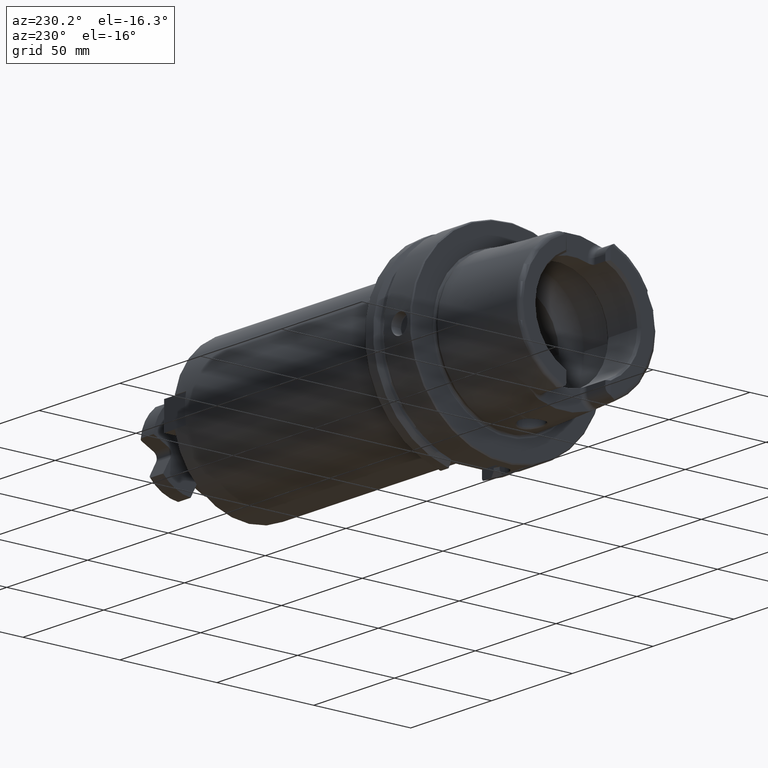
[diagram: clean part render]
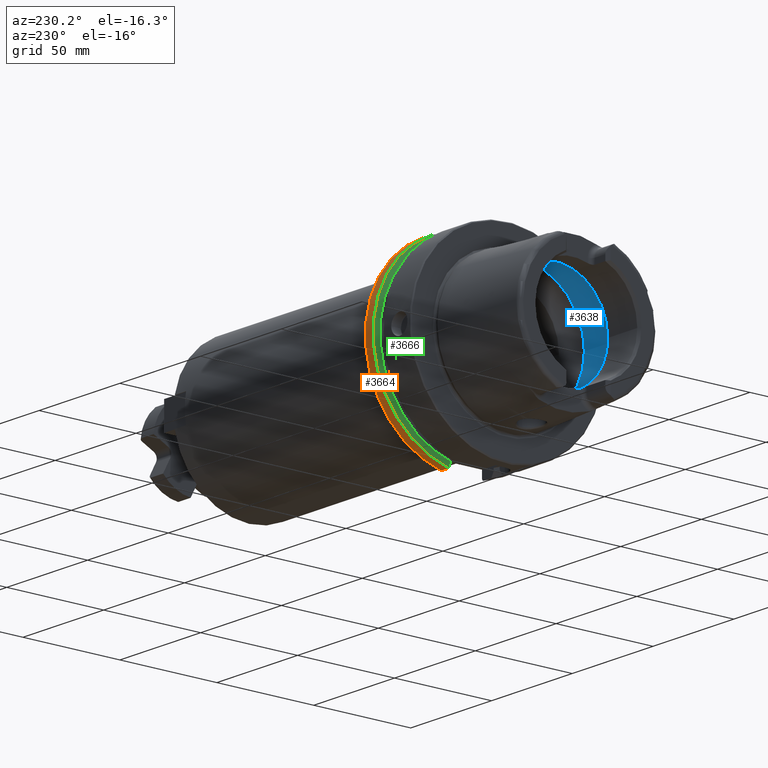
[diagram: same view with three faces highlighted in distinct colors, each labeled with its STEP entity id]
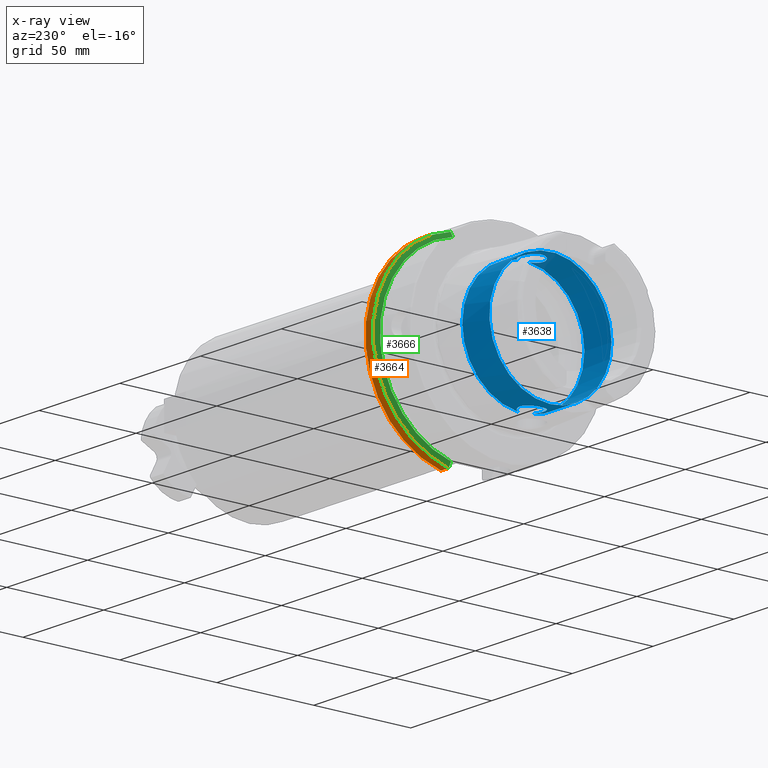
[diagram: x-ray of the same camera — body ghosted, the three highlighted faces saturated]
A machine part, auxiliary view with three faces highlighted in distinct colors.
The next image is the same camera in x-ray (body ghosted, the three faces saturated) — at least one of them is partly hidden behind the body in this view.
Their STEP definitions:

[orange] entity #3664 — the highlighted cylindrical surface (partial cylindrical patch) has radius 50 mm, axis along (1, 0, 0).
#813=CYLINDRICAL_SURFACE('',#4100,50.);
#918=FACE_OUTER_BOUND('',#1114,.T.);
#1114=EDGE_LOOP('',(#3045,#3046,#3047,#3048));
#1326=LINE('',#6782,#1518);
#1336=LINE('',#6864,#1528);
#1518=VECTOR('',#4808,10.);
#1528=VECTOR('',#4844,10.);
#1701=CIRCLE('',#4097,50.);
#1703=CIRCLE('',#4101,50.);
#2011=VERTEX_POINT('',#6732);
#2019=VERTEX_POINT('',#6778);
#2031=VERTEX_POINT('',#6847);
#2032=VERTEX_POINT('',#6862);
#2390=EDGE_CURVE('',#2011,#2019,#1326,.T.);
#2407=EDGE_CURVE('',#2011,#2031,#1701,.T.);
#2410=EDGE_CURVE('',#2019,#2032,#1703,.T.);
#2411=EDGE_CURVE('',#2032,#2031,#1336,.T.);
#3045=ORIENTED_EDGE('',*,*,#2390,.T.);
#3046=ORIENTED_EDGE('',*,*,#2410,.T.);
#3047=ORIENTED_EDGE('',*,*,#2411,.T.);
#3048=ORIENTED_EDGE('',*,*,#2407,.F.);
#3664=ADVANCED_FACE('',(#918),#813,.T.);
#4097=AXIS2_PLACEMENT_3D('',#6848,#4834,#4835);
#4100=AXIS2_PLACEMENT_3D('',#6861,#4840,#4841);
#4101=AXIS2_PLACEMENT_3D('',#6863,#4842,#4843);
#4808=DIRECTION('',(-1.,0.,0.));
#4834=DIRECTION('center_axis',(1.,0.,0.));
#4835=DIRECTION('ref_axis',(0.,0.,-1.));
#4840=DIRECTION('center_axis',(1.,0.,0.));
#4841=DIRECTION('ref_axis',(0.,1.,0.));
#4842=DIRECTION('center_axis',(1.,0.,0.));
#4843=DIRECTION('ref_axis',(0.,0.,-1.));
#4844=DIRECTION('',(1.,0.,0.));
#6732=CARTESIAN_POINT('',(28.,11.,-48.7749935930288));
#6778=CARTESIAN_POINT('',(23.2620290209214,11.,-48.7749935930288));
#6782=CARTESIAN_POINT('',(25.6310145104607,11.,-48.7749935930288));
#6847=CARTESIAN_POINT('',(28.,10.,48.9897948556636));
#6848=CARTESIAN_POINT('Origin',(28.,0.,0.));
#6861=CARTESIAN_POINT('Origin',(25.6310145104607,0.,0.));
#6862=CARTESIAN_POINT('',(23.2620290209214,10.,48.9897948556636));
#6863=CARTESIAN_POINT('Origin',(23.2620290209214,0.,0.));
#6864=CARTESIAN_POINT('',(25.6310145104607,10.,48.9897948556636));

[blue] entity #3638 — the highlighted cylindrical surface (bore or boss wall) has radius 31.5 mm, axis along (-1, 0, 0).
#611=B_SPLINE_CURVE_WITH_KNOTS('',3,(#6184,#6185,#6186,#6187,#6188,#6189,
#6190,#6191,#6192,#6193,#6194,#6195,#6196,#6197,#6198,#6199,#6200,#6201,
#6202,#6203,#6204,#6205,#6206,#6207,#6208,#6209,#6210,#6211,#6212,#6213,
#6214),.UNSPECIFIED.,.F.,.F.,(4,2,2,2,2,2,2,2,2,2,2,3,2,2,4),(-2.42966289251045,
-2.26609494287567,-2.03948128472637,-1.81286762657707,-1.58625396842777,
-1.35964031027847,-1.1330370617835,-0.906433813288535,-0.679830564793567,
-0.453227316298599,-0.226613658149299,0.,0.2266136581493,0.453227316298599,
0.616795265988555),.UNSPECIFIED.);
#616=B_SPLINE_CURVE_WITH_KNOTS('',3,(#6376,#6377,#6378,#6379,#6380,#6381,
#6382,#6383,#6384,#6385,#6386,#6387,#6388,#6389,#6390,#6391,#6392,#6393,
#6394,#6395,#6396,#6397,#6398,#6399,#6400,#6401,#6402,#6403,#6404,#6405,
#6406),.UNSPECIFIED.,.F.,.F.,(4,2,2,3,2,2,2,2,2,2,2,2,2,2,4),(-0.616795265933374,
-0.453227316298598,-0.226613658149299,0.,0.2266136581493,0.453227316298599,
0.679830564793567,0.906433813288535,1.1330370617835,1.35964031027847,1.58625396842777,
1.81286762657707,2.03948128472637,2.26609494287567,2.42966289256562),
 .UNSPECIFIED.);
#805=CYLINDRICAL_SURFACE('',#4043,31.5);
#892=FACE_OUTER_BOUND('',#1087,.T.);
#1087=EDGE_LOOP('',(#2876,#2877,#2878,#2879,#2880,#2881,#2882,#2883,#2884));
#1298=LINE('',#6422,#1490);
#1490=VECTOR('',#4692,31.5);
#1672=CIRCLE('',#4044,31.5);
#1673=CIRCLE('',#4045,31.5);
#1674=CIRCLE('',#4046,31.5);
#1675=CIRCLE('',#4047,31.5);
#1676=CIRCLE('',#4048,31.5);
#1953=VERTEX_POINT('',#6172);
#1954=VERTEX_POINT('',#6183);
#1957=VERTEX_POINT('',#6363);
#1959=VERTEX_POINT('',#6375);
#1960=VERTEX_POINT('',#6419);
#1961=VERTEX_POINT('',#6421);
#1962=VERTEX_POINT('',#6423);
#2300=EDGE_CURVE('',#1954,#1953,#611,.T.);
#2306=EDGE_CURVE('',#1959,#1957,#616,.T.);
#2309=EDGE_CURVE('',#1960,#1957,#1672,.T.);
#2310=EDGE_CURVE('',#1960,#1961,#1298,.T.);
#2311=EDGE_CURVE('',#1961,#1962,#1673,.T.);
#2312=EDGE_CURVE('',#1962,#1961,#1674,.T.);
#2313=EDGE_CURVE('',#1954,#1960,#1675,.T.);
#2314=EDGE_CURVE('',#1959,#1953,#1676,.T.);
#2876=ORIENTED_EDGE('',*,*,#2306,.T.);
#2877=ORIENTED_EDGE('',*,*,#2309,.F.);
#2878=ORIENTED_EDGE('',*,*,#2310,.T.);
#2879=ORIENTED_EDGE('',*,*,#2311,.T.);
#2880=ORIENTED_EDGE('',*,*,#2312,.T.);
#2881=ORIENTED_EDGE('',*,*,#2310,.F.);
#2882=ORIENTED_EDGE('',*,*,#2313,.F.);
#2883=ORIENTED_EDGE('',*,*,#2300,.T.);
#2884=ORIENTED_EDGE('',*,*,#2314,.F.);
#3638=ADVANCED_FACE('',(#892),#805,.F.);
#4043=AXIS2_PLACEMENT_3D('',#6418,#4688,#4689);
#4044=AXIS2_PLACEMENT_3D('',#6420,#4690,#4691);
#4045=AXIS2_PLACEMENT_3D('',#6424,#4693,#4694);
#4046=AXIS2_PLACEMENT_3D('',#6425,#4695,#4696);
#4047=AXIS2_PLACEMENT_3D('',#6426,#4697,#4698);
#4048=AXIS2_PLACEMENT_3D('',#6427,#4699,#4700);
#4688=DIRECTION('center_axis',(-1.,0.,0.));
#4689=DIRECTION('ref_axis',(0.,1.,0.));
#4690=DIRECTION('center_axis',(-1.,0.,0.));
#4691=DIRECTION('ref_axis',(0.,0.,1.));
#4692=DIRECTION('',(-1.,0.,0.));
#4693=DIRECTION('center_axis',(-1.,0.,0.));
#4694=DIRECTION('ref_axis',(0.,0.,1.));
#4695=DIRECTION('center_axis',(-1.,0.,0.));
#4696=DIRECTION('ref_axis',(0.,0.,1.));
#4697=DIRECTION('center_axis',(-1.,0.,0.));
#4698=DIRECTION('ref_axis',(0.,0.,1.));
#4699=DIRECTION('center_axis',(-1.,0.,0.));
#4700=DIRECTION('ref_axis',(0.,0.,1.));
#6172=CARTESIAN_POINT('',(-9.74679434480896,2.89893607109041,-31.3663222207471));
#6183=CARTESIAN_POINT('',(-9.74679434480896,-2.89893607109041,-31.3663222207471));
#6184=CARTESIAN_POINT('Ctrl Pts',(-9.74679434480898,-2.8989360710904,-31.3663222207471));
#6185=CARTESIAN_POINT('Ctrl Pts',(-10.0245557799842,-3.40227174537722,-31.3198029657389));
#6186=CARTESIAN_POINT('Ctrl Pts',(-10.3735944692601,-3.85887584349869,-31.2651415110221));
#6187=CARTESIAN_POINT('Ctrl Pts',(-11.289042660848,-4.77432403508655,-31.140708727458));
#6188=CARTESIAN_POINT('Ctrl Pts',(-11.9624834305428,-5.23577180141274,-31.0633803744766));
#6189=CARTESIAN_POINT('Ctrl Pts',(-13.4401908644727,-5.84865855662958,-30.9538382316308));
#6190=CARTESIAN_POINT('Ctrl Pts',(-14.2446211395023,-6.00000000000001,-30.9232921921325));
#6191=CARTESIAN_POINT('Ctrl Pts',(-15.7553788604977,-6.00000000000001,-30.9232921921325));
#6192=CARTESIAN_POINT('Ctrl Pts',(-16.5598091355273,-5.84865855662958,-30.9538382316308));
#6193=CARTESIAN_POINT('Ctrl Pts',(-18.0375165694572,-5.23577180141275,-31.0633803744766));
#6194=CARTESIAN_POINT('Ctrl Pts',(-18.710957339152,-4.77432403508655,-31.140708727458));
#6195=CARTESIAN_POINT('Ctrl Pts',(-19.7742996118461,-3.71098176239249,-31.2852440928545));
#6196=CARTESIAN_POINT('Ctrl Pts',(-20.2357665181958,-3.03753058698362,-31.3619556484746));
#6197=CARTESIAN_POINT('Ctrl Pts',(-20.8486671603361,-1.55978711209124,-31.4700797313679));
#6198=CARTESIAN_POINT('Ctrl Pts',(-21.,-0.755344161649895,-31.5));
#6199=CARTESIAN_POINT('Ctrl Pts',(-21.,0.755344161649892,-31.5));
#6200=CARTESIAN_POINT('Ctrl Pts',(-20.8486671603361,1.55978711209124,-31.4700797313679));
#6201=CARTESIAN_POINT('Ctrl Pts',(-20.2357665181958,3.03753058698362,-31.3619556484746));
#6202=CARTESIAN_POINT('Ctrl Pts',(-19.7742996118461,3.71098176239249,-31.2852440928545));
#6203=CARTESIAN_POINT('Ctrl Pts',(-18.710957339152,4.77432403508655,-31.140708727458));
#6204=CARTESIAN_POINT('Ctrl Pts',(-18.0375165694572,5.23577180141274,-31.0633803744766));
#6205=CARTESIAN_POINT('Ctrl Pts',(-16.5598091355273,5.84865855662958,-30.9538382316308));
#6206=CARTESIAN_POINT('Ctrl Pts',(-15.7553788604977,6.00000000000001,-30.9232921921325));
#6207=CARTESIAN_POINT('Ctrl Pts',(-15.,6.00000000000001,-30.9232921921325));
#6208=CARTESIAN_POINT('Ctrl Pts',(-14.2446211395023,6.00000000000001,-30.9232921921325));
#6209=CARTESIAN_POINT('Ctrl Pts',(-13.4401908644727,5.84865855662958,-30.9538382316308));
#6210=CARTESIAN_POINT('Ctrl Pts',(-11.9624834305428,5.23577180141274,-31.0633803744766));
#6211=CARTESIAN_POINT('Ctrl Pts',(-11.289042660848,4.77432403508655,-31.140708727458));
#6212=CARTESIAN_POINT('Ctrl Pts',(-10.3735944691306,3.85887584336922,-31.2651415110397));
#6213=CARTESIAN_POINT('Ctrl Pts',(-10.0245557801354,3.40227174565105,-31.3198029657135));
#6214=CARTESIAN_POINT('Ctrl Pts',(-9.74679434480898,2.8989360710904,-31.3663222207471));
#6363=CARTESIAN_POINT('',(-9.74679434480896,-2.89893607109042,31.3663222207471));
#6375=CARTESIAN_POINT('',(-9.74679434480896,2.89893607109042,31.3663222207471));
#6376=CARTESIAN_POINT('Ctrl Pts',(-9.74679434480897,2.89893607109041,31.3663222207471));
#6377=CARTESIAN_POINT('Ctrl Pts',(-10.0245557799842,3.40227174537723,31.3198029657389));
#6378=CARTESIAN_POINT('Ctrl Pts',(-10.3735944692601,3.85887584349869,31.2651415110221));
#6379=CARTESIAN_POINT('Ctrl Pts',(-11.289042660848,4.77432403508655,31.140708727458));
#6380=CARTESIAN_POINT('Ctrl Pts',(-11.9624834305428,5.23577180141274,31.0633803744766));
#6381=CARTESIAN_POINT('Ctrl Pts',(-13.4401908644727,5.84865855662958,30.9538382316308));
#6382=CARTESIAN_POINT('Ctrl Pts',(-14.2446211395023,6.00000000000001,30.9232921921325));
#6383=CARTESIAN_POINT('Ctrl Pts',(-15.,6.00000000000001,30.9232921921325));
#6384=CARTESIAN_POINT('Ctrl Pts',(-15.7553788604977,6.00000000000001,30.9232921921325));
#6385=CARTESIAN_POINT('Ctrl Pts',(-16.5598091355273,5.84865855662958,30.9538382316308));
#6386=CARTESIAN_POINT('Ctrl Pts',(-18.0375165694572,5.23577180141274,31.0633803744766));
#6387=CARTESIAN_POINT('Ctrl Pts',(-18.710957339152,4.77432403508655,31.140708727458));
#6388=CARTESIAN_POINT('Ctrl Pts',(-19.7742996118461,3.71098176239249,31.2852440928545));
#6389=CARTESIAN_POINT('Ctrl Pts',(-20.2357665181958,3.03753058698362,31.3619556484746));
#6390=CARTESIAN_POINT('Ctrl Pts',(-20.8486671603361,1.55978711209124,31.4700797313679));
#6391=CARTESIAN_POINT('Ctrl Pts',(-21.,0.755344161649892,31.5));
#6392=CARTESIAN_POINT('Ctrl Pts',(-21.,-0.755344161649894,31.5));
#6393=CARTESIAN_POINT('Ctrl Pts',(-20.8486671603361,-1.55978711209124,31.4700797313679));
#6394=CARTESIAN_POINT('Ctrl Pts',(-20.2357665181958,-3.03753058698362,31.3619556484746));
#6395=CARTESIAN_POINT('Ctrl Pts',(-19.7742996118461,-3.71098176239249,31.2852440928545));
#6396=CARTESIAN_POINT('Ctrl Pts',(-18.710957339152,-4.77432403508655,31.140708727458));
#6397=CARTESIAN_POINT('Ctrl Pts',(-18.0375165694572,-5.23577180141274,31.0633803744766));
#6398=CARTESIAN_POINT('Ctrl Pts',(-16.5598091355273,-5.84865855662958,30.9538382316308));
#6399=CARTESIAN_POINT('Ctrl Pts',(-15.7553788604977,-6.00000000000001,30.9232921921325));
#6400=CARTESIAN_POINT('Ctrl Pts',(-14.2446211395023,-6.00000000000001,30.9232921921325));
#6401=CARTESIAN_POINT('Ctrl Pts',(-13.4401908644727,-5.84865855662958,30.9538382316308));
#6402=CARTESIAN_POINT('Ctrl Pts',(-11.9624834305428,-5.23577180141274,31.0633803744766));
#6403=CARTESIAN_POINT('Ctrl Pts',(-11.289042660848,-4.77432403508655,31.140708727458));
#6404=CARTESIAN_POINT('Ctrl Pts',(-10.3735944691306,-3.85887584336922,31.2651415110397));
#6405=CARTESIAN_POINT('Ctrl Pts',(-10.0245557801353,-3.40227174565106,31.3198029657135));
#6406=CARTESIAN_POINT('Ctrl Pts',(-9.74679434480897,-2.89893607109041,31.3663222207471));
#6418=CARTESIAN_POINT('Origin',(-18.1430342013226,0.,0.));
#6419=CARTESIAN_POINT('',(-9.74679434480896,-31.5,3.85763741731416E-15));
#6420=CARTESIAN_POINT('Origin',(-9.74679434480896,0.,0.));
#6421=CARTESIAN_POINT('',(-26.5392740578363,-31.5,3.85763741731416E-15));
#6422=CARTESIAN_POINT('',(-18.1430342013226,-31.5,3.85763741731416E-15));
#6423=CARTESIAN_POINT('',(-26.5392740578363,-3.85763741731416E-15,-31.5));
#6424=CARTESIAN_POINT('Origin',(-26.5392740578363,0.,0.));
#6425=CARTESIAN_POINT('Origin',(-26.5392740578363,0.,0.));
#6426=CARTESIAN_POINT('Origin',(-9.74679434480896,0.,0.));
#6427=CARTESIAN_POINT('Origin',(-9.74679434480896,0.,0.));

[green] entity #3666 — the highlighted conical surface has half-angle 60 deg.
#579=(
BOUNDED_CURVE()
B_SPLINE_CURVE(2,(#6779,#6780,#6781),.UNSPECIFIED.,.F.,.F.)
B_SPLINE_CURVE_WITH_KNOTS((3,3),(0.,0.28292349080556),.UNSPECIFIED.)
CURVE()
GEOMETRIC_REPRESENTATION_ITEM()
RATIONAL_B_SPLINE_CURVE((1.,1.0003193410929,1.))
REPRESENTATION_ITEM('')
);
#582=(
BOUNDED_CURVE()
B_SPLINE_CURVE(2,(#6870,#6871,#6872),.UNSPECIFIED.,.F.,.F.)
B_SPLINE_CURVE_WITH_KNOTS((3,3),(0.,0.281931851964124),.UNSPECIFIED.)
CURVE()
GEOMETRIC_REPRESENTATION_ITEM()
RATIONAL_B_SPLINE_CURVE((1.,1.00031639802473,1.))
REPRESENTATION_ITEM('')
);
#920=FACE_OUTER_BOUND('',#1116,.T.);
#1116=EDGE_LOOP('',(#3053,#3054,#3055,#3056));
#1703=CIRCLE('',#4101,50.);
#1705=CIRCLE('',#4105,47.5975952641917);
#2018=VERTEX_POINT('',#6776);
#2019=VERTEX_POINT('',#6778);
#2032=VERTEX_POINT('',#6862);
#2033=VERTEX_POINT('',#6868);
#2389=EDGE_CURVE('',#2019,#2018,#579,.T.);
#2410=EDGE_CURVE('',#2019,#2032,#1703,.T.);
#2413=EDGE_CURVE('',#2018,#2033,#1705,.T.);
#2414=EDGE_CURVE('',#2033,#2032,#582,.T.);
#3053=ORIENTED_EDGE('',*,*,#2389,.T.);
#3054=ORIENTED_EDGE('',*,*,#2413,.T.);
#3055=ORIENTED_EDGE('',*,*,#2414,.T.);
#3056=ORIENTED_EDGE('',*,*,#2410,.F.);
#3578=CONICAL_SURFACE('',#4104,48.7987976320958,1.0471975511966);
#3666=ADVANCED_FACE('',(#920),#3578,.T.);
#4101=AXIS2_PLACEMENT_3D('',#6863,#4842,#4843);
#4104=AXIS2_PLACEMENT_3D('',#6867,#4849,#4850);
#4105=AXIS2_PLACEMENT_3D('',#6869,#4851,#4852);
#4842=DIRECTION('center_axis',(1.,0.,0.));
#4843=DIRECTION('ref_axis',(0.,0.,-1.));
#4849=DIRECTION('center_axis',(1.,0.,0.));
#4850=DIRECTION('ref_axis',(0.,1.,0.));
#4851=DIRECTION('center_axis',(1.,0.,0.));
#4852=DIRECTION('ref_axis',(0.,0.,-1.));
#6776=CARTESIAN_POINT('',(21.875,11.,-46.3090819919138));
#6778=CARTESIAN_POINT('',(23.2620290209214,11.,-48.7749935930288));
#6779=CARTESIAN_POINT('Ctrl Pts',(23.2620290209214,11.,-48.7749935930288));
#6780=CARTESIAN_POINT('Ctrl Pts',(22.5505288964237,11.,-47.5116880808802));
#6781=CARTESIAN_POINT('Ctrl Pts',(21.875,11.,-46.3090819919138));
#6862=CARTESIAN_POINT('',(23.2620290209214,10.,48.9897948556636));
#6863=CARTESIAN_POINT('Origin',(23.2620290209214,0.,0.));
#6867=CARTESIAN_POINT('Origin',(22.5685145104607,0.,0.));
#6868=CARTESIAN_POINT('',(21.875,10.,46.5352670018535));
#6869=CARTESIAN_POINT('Origin',(21.875,0.,0.));
#6870=CARTESIAN_POINT('Ctrl Pts',(21.875,10.,46.5352670018535));
#6871=CARTESIAN_POINT('Ctrl Pts',(22.5506945724782,10.,47.7323213251992));
#6872=CARTESIAN_POINT('Ctrl Pts',(23.2620290209214,10.,48.9897948556636));